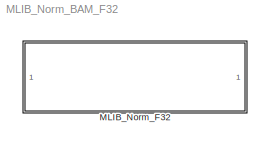
MODEL MLIB_Norm_BAM_F32
KIND model
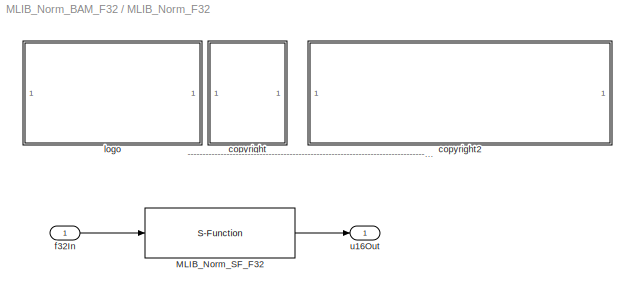
BLOCK [SubSystem] MLIB_Norm_F32
  FunctionWithSeparateData = off
  MaskDescription = Bit accurate model of the normalization function. The function counts the number of left shift needed for normalization of the input fractional value.
  MaskDisplay = color('black');port_label('input',1,'f32In');port_label('output',1,'u16Out');color('black');disp('MLIB_Norm_F32');color('blue');text(tX,tY, 'BAM', 'horizontalAlignment', 'center');
  MaskHideContents = off
  MaskIconFrame = on
  MaskIconOpaque = on
  MaskIconRotate = none
  MaskIconUnits = pixels
  MaskInitialization = pos = get_param(gcb, 'Position');width = pos(3) - pos(1); height = pos(4) - pos(2);tX=width/2;tY=height*0.9;
  MaskPortRotate = default
  MaskType = MLIB_Norm_F32
  MinAlgLoopOccurrences = off
  Opaque = off
  Ports = [1, 1]
  PropExecContextOutsideSubsystem = off
  RTWSystemCode = Auto
  RequestExecContextInheritance = off
BLOCK [S-Function] MLIB_Norm_F32/MLIB_Norm_SF_F32
  EnableBusSupport = off
  FunctionName = MLIB_Norm_SF_F32
  Ports = [1, 1]
BLOCK [SubSystem] MLIB_Norm_F32/<copyright redacted>
  FunctionWithSeparateData = off
  MaskDisplay = text(10,90,'FILE:');text(10,75,'DESRIPTION:')text(10,60,'<copyright redacted>
  MaskHideContents = off
  MaskIconFrame = off
  MaskIconOpaque = on
  MaskIconRotate = none
  MaskIconUnits = pixels
  MaskPortRotate = default
  MinAlgLoopOccurrences = off
  Opaque = off
  Ports = []
  PropExecContextOutsideSubsystem = off
  RTWSystemCode = Auto
  RequestExecContextInheritance = off
BLOCK [SubSystem] MLIB_Norm_F32/copyright2
  FunctionWithSeparateData = off
  MaskDisplay = text(10,90,'MLIB_Norm_BAM_F32.mdl');text(10,75,'Normalization of the input value.');text(10,60,'Freescale')text(10,45,'0.1');text(10,30,'15-Sep-2011');
  MaskHideContents = off
  MaskIconFrame = off
  MaskIconOpaque = on
  MaskIconRotate = none
  MaskIconUnits = pixels
  MaskPortRotate = default
  MinAlgLoopOccurrences = off
  Opaque = off
  Ports = []
  PropExecContextOutsideSubsystem = off
  RTWSystemCode = Auto
  RequestExecContextInheritance = off
BLOCK [Inport] MLIB_Norm_F32/f32In
  IconDisplay = Port number
  OutDataType = fixdt(1, 16)
  OutScaling = 2^0
BLOCK [SubSystem] MLIB_Norm_F32/logo
  FunctionWithSeparateData = off
  MaskDisplay = image(imread('logo.jpg'))
  MaskHideContents = off
  MaskIconFrame = off
  MaskIconOpaque = on
  MaskIconRotate = none
  MaskIconUnits = autoscale
  MaskPortRotate = default
  MinAlgLoopOccurrences = off
  Opaque = off
  Ports = []
  PropExecContextOutsideSubsystem = off
  RTWSystemCode = Auto
  RequestExecContextInheritance = off
BLOCK [Outport] MLIB_Norm_F32/u16Out
  IconDisplay = Port number
  OutDataType = fixdt(1, 16)
  OutScaling = 2^0
ANNOTATION MLIB_Norm_F32: ---------------------------------------------------------------------------------------------------------------------------------------------------------------------------------------------------
LINE MLIB_Norm_F32/MLIB_Norm_SF_F32:1 -> MLIB_Norm_F32/u16Out:1
LINE MLIB_Norm_F32/f32In:1 -> MLIB_Norm_F32/MLIB_Norm_SF_F32:1
